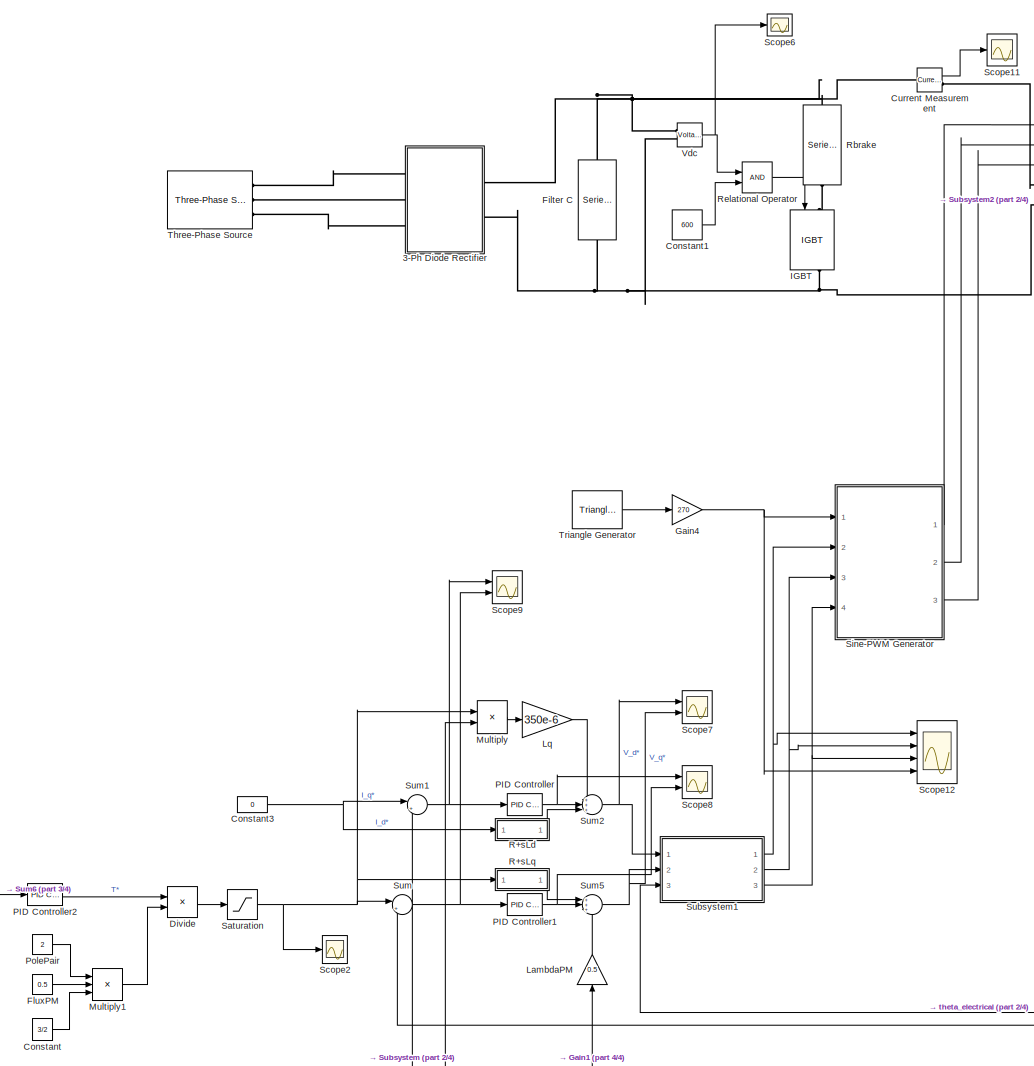
[diagram: root canvas - part 1/4, center side, full height]
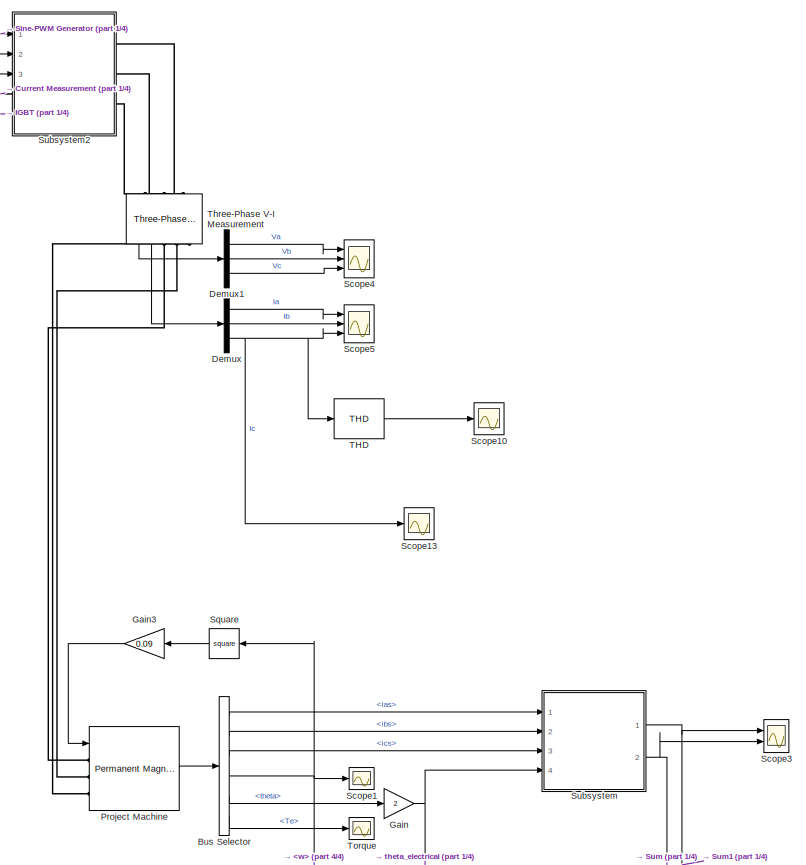
[diagram: root canvas - part 2/4, middle right region]
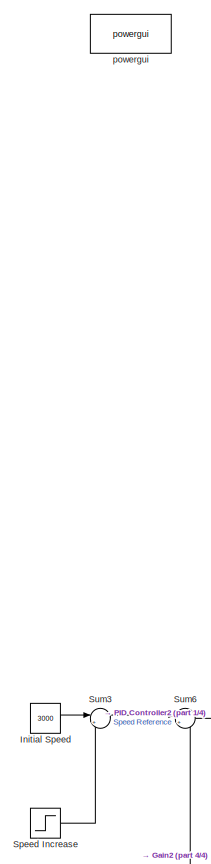
[diagram: root canvas - part 3/4, middle left region]
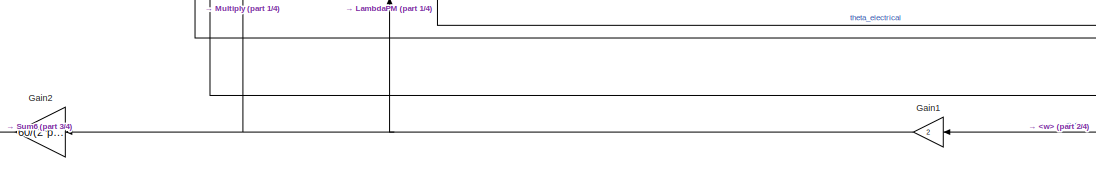
[diagram: root canvas - part 4/4, bottom center region]
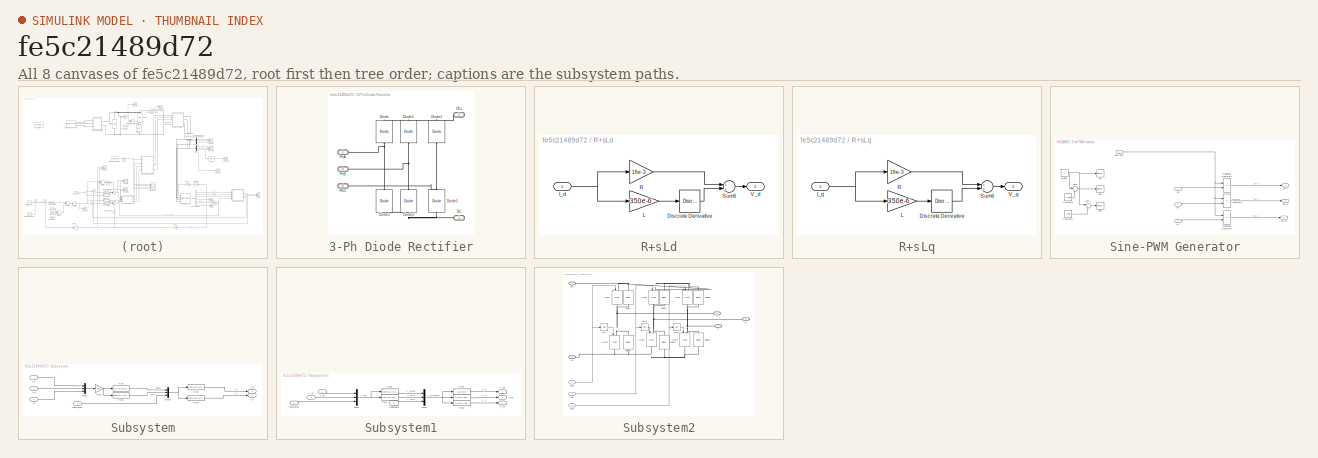
[diagram: thumbnail index - all 8 canvases of the model, root first then tree order]
MODEL slx_fe5c21489d72
KIND model
CONFIG AbsTol = auto
CONFIG EnableMultiTasking = off
CONFIG FixedStep = auto
CONFIG MaxStep = 1e-5
CONFIG MinStep = auto
CONFIG RelTol = 1e-3
CONFIG SampleTimeConstraint = Unconstrained
CONFIG Solver = VariableStepAuto
CONFIG SolverName = VariableStepAuto
CONFIG StartTime = 0.0
CONFIG StopTime = 1
BLOCK [SubSystem] 3-Ph Diode Rectifier
  Ports = [0, 0, 0, 0, 0, 3, 2]
  RequestExecContextInheritance = off
BLOCK [PMIOPort] 3-Ph Diode Rectifier/DC+
  Side = Right
BLOCK [PMIOPort] 3-Ph Diode Rectifier/DC-
  Port = 5
  Side = Right
BLOCK [Reference] 3-Ph Diode Rectifier/Diode  REF=powerlib/Power
Electronics/Diode
  Ports = [0, 0, 0, 0, 0, 1, 1]
  SourceBlock = powerlib/Power\nElectronics/Diode
  SourceProductBaseCode = PS
  SourceProductName = Simscape Power Systems
  SourceType = Diode
BLOCK [Reference] 3-Ph Diode Rectifier/Diode1  REF=powerlib/Power
Electronics/Diode
  Ports = [0, 0, 0, 0, 0, 1, 1]
  SourceBlock = powerlib/Power\nElectronics/Diode
  SourceProductBaseCode = PS
  SourceProductName = Simscape Power Systems
  SourceType = Diode
BLOCK [Reference] 3-Ph Diode Rectifier/Diode2  REF=powerlib/Power
Electronics/Diode
  Ports = [0, 0, 0, 0, 0, 1, 1]
  SourceBlock = powerlib/Power\nElectronics/Diode
  SourceProductBaseCode = PS
  SourceProductName = Simscape Power Systems
  SourceType = Diode
BLOCK [Reference] 3-Ph Diode Rectifier/Diode3  REF=powerlib/Power
Electronics/Diode
  Ports = [0, 0, 0, 0, 0, 1, 1]
  SourceBlock = powerlib/Power\nElectronics/Diode
  SourceProductBaseCode = PS
  SourceProductName = Simscape Power Systems
  SourceType = Diode
BLOCK [Reference] 3-Ph Diode Rectifier/Diode4  REF=powerlib/Power
Electronics/Diode
  Ports = [0, 0, 0, 0, 0, 1, 1]
  SourceBlock = powerlib/Power\nElectronics/Diode
  SourceProductBaseCode = PS
  SourceProductName = Simscape Power Systems
  SourceType = Diode
BLOCK [Reference] 3-Ph Diode Rectifier/Diode5  REF=powerlib/Power
Electronics/Diode
  Ports = [0, 0, 0, 0, 0, 1, 1]
  SourceBlock = powerlib/Power\nElectronics/Diode
  SourceProductBaseCode = PS
  SourceProductName = Simscape Power Systems
  SourceType = Diode
BLOCK [PMIOPort] 3-Ph Diode Rectifier/PhA
  Port = 2
  Side = Left
BLOCK [PMIOPort] 3-Ph Diode Rectifier/PhB
  Port = 3
  Side = Left
BLOCK [PMIOPort] 3-Ph Diode Rectifier/PhC
  Port = 4
  Side = Left
BLOCK [BusSelector] Bus Selector
  OutputAsBus = off
  OutputSignals = ias,ibs,ics,w,theta,Te
  Ports = [1, 6]
BLOCK [Constant] Constant
  Value = 3/2
BLOCK [Constant] Constant1
  Value = 600
BLOCK [Constant] Constant3
  Value = 0
BLOCK [Reference] Current Measurement  REF=powerlib/Measurements/Current Measurement
  Ports = [0, 1, 0, 0, 0, 1, 1]
  SourceBlock = powerlib/Measurements/Current Measurement
  SourceProductBaseCode = PS
  SourceProductName = Simscape Power Systems
  SourceType = Current Measurement
  UserDataPersistent = on
BLOCK [Demux] Demux
  DisplayOption = bar
  Outputs = 3
  Ports = [1, 3]
BLOCK [Demux] Demux1
  DisplayOption = bar
  Outputs = 3
  Ports = [1, 3]
BLOCK [Product] Divide
  InputSameDT = off
  Inputs = */
  OutDataTypeStr = Inherit: Inherit via internal rule
  Ports = [2, 1]
  RndMeth = Floor
  SaturateOnIntegerOverflow = off
BLOCK [Reference] Filter C  REF=powerlib/Elements/Series RLC Branch
  Ports = [0, 0, 0, 0, 0, 1, 1]
  SourceBlock = powerlib/Elements/Series RLC Branch
  SourceProductBaseCode = PS
  SourceProductName = Simscape Power Systems
  SourceType = Series RLC Branch
BLOCK [Constant] FluxPM
  Value = 0.5
BLOCK [Gain] Gain
  Gain = 2
  OutDataTypeStr = Inherit: Inherit via internal rule
  ParamDataTypeStr = Inherit: Inherit via internal rule
  SaturateOnIntegerOverflow = off
BLOCK [Gain] Gain1
  Gain = 2
  OutDataTypeStr = Inherit: Inherit via internal rule
  ParamDataTypeStr = Inherit: Inherit via internal rule
  SaturateOnIntegerOverflow = off
BLOCK [Gain] Gain2
  Gain = 60/(2*pi)
  OutDataTypeStr = Inherit: Inherit via internal rule
  ParamDataTypeStr = Inherit: Inherit via internal rule
  SaturateOnIntegerOverflow = off
BLOCK [Gain] Gain3
  Gain = 0.09
  OutDataTypeStr = Inherit: Inherit via internal rule
  ParamDataTypeStr = Inherit: Inherit via internal rule
  SaturateOnIntegerOverflow = off
BLOCK [Gain] Gain4
  Gain = 270
  OutDataTypeStr = Inherit: Inherit via internal rule
  ParamDataTypeStr = Inherit: Inherit via internal rule
  SaturateOnIntegerOverflow = off
BLOCK [Reference] IGBT  REF=powerlib/Power
Electronics/IGBT
  Ports = [1, 1, 0, 0, 0, 1, 1]
  SourceBlock = powerlib/Power\nElectronics/IGBT
  SourceProductBaseCode = PS
  SourceProductName = Simscape Power Systems
  SourceType = IGBT
BLOCK [Constant] Initial Speed 
  Value = 3000
BLOCK [Gain] LambdaPM
  Gain = 0.5
  OutDataTypeStr = Inherit: Inherit via internal rule
  ParamDataTypeStr = Inherit: Inherit via internal rule
  SaturateOnIntegerOverflow = off
BLOCK [Gain] Lq
  Gain = 350e-6
  OutDataTypeStr = Inherit: Inherit via internal rule
  ParamDataTypeStr = Inherit: Inherit via internal rule
  SaturateOnIntegerOverflow = off
BLOCK [Product] Multiply
  InputSameDT = off
  OutDataTypeStr = Inherit: Inherit via internal rule
  Ports = [2, 1]
  RndMeth = Floor
  SaturateOnIntegerOverflow = off
BLOCK [Product] Multiply1
  InputSameDT = off
  Inputs = 3
  OutDataTypeStr = Inherit: Inherit via internal rule
  Ports = [3, 1]
  RndMeth = Floor
  SaturateOnIntegerOverflow = off
BLOCK [Reference] PID Controller  REF=simulink/Continuous/PID Controller
  Ports = [1, 1]
  SourceBlock = simulink/Continuous/PID Controller
  SourceProductBaseCode = SL
  SourceProductName = Simulink
  SourceType = PID 1dof
BLOCK [Reference] PID Controller1  REF=simulink/Continuous/PID Controller
  Ports = [1, 1]
  SourceBlock = simulink/Continuous/PID Controller
  SourceProductBaseCode = SL
  SourceProductName = Simulink
  SourceType = PID 1dof
BLOCK [Reference] PID Controller2  REF=simulink/Continuous/PID Controller
  Ports = [1, 1]
  SourceBlock = simulink/Continuous/PID Controller
  SourceProductBaseCode = SL
  SourceProductName = Simulink
  SourceType = PID 1dof
BLOCK [Constant] PolePair
  Value = 2
BLOCK [Reference] Project Machine  REF=powerlib/Machines/Permanent Magnet
Synchronous Machine
  Ports = [1, 1, 0, 0, 0, 3]
  SourceBlock = powerlib/Machines/Permanent Magnet\nSynchronous Machine
  SourceProductBaseCode = PS
  SourceProductName = Simscape Power Systems
  SourceType = Permanent Magnet Synchronous Machine
BLOCK [SubSystem] R+sLd
  Ports = [1, 1]
  RequestExecContextInheritance = off
BLOCK [Reference] R+sLd/Discrete Derivative  REF=simulink/Discrete/Discrete Derivative
  Ports = [1, 1]
  SourceBlock = simulink/Discrete/Discrete Derivative
  SourceProductBaseCode = SL
  SourceProductName = Simulink
  SourceType = Discrete Derivative
BLOCK [Inport] R+sLd/I_d
  IconDisplay = Port number
BLOCK [Gain] R+sLd/L
  Gain = 350e-6
  OutDataTypeStr = Inherit: Inherit via internal rule
  ParamDataTypeStr = Inherit: Inherit via internal rule
  SaturateOnIntegerOverflow = off
BLOCK [Gain] R+sLd/R
  Gain = 16e-3
  OutDataTypeStr = Inherit: Inherit via internal rule
  ParamDataTypeStr = Inherit: Inherit via internal rule
  SaturateOnIntegerOverflow = off
BLOCK [Sum] R+sLd/Sum6
  InputSameDT = off
  OutDataTypeStr = Inherit: Inherit via internal rule
  Ports = [2, 1]
  SaturateOnIntegerOverflow = off
BLOCK [Outport] R+sLd/V_d
  IconDisplay = Port number
BLOCK [SubSystem] R+sLq
  Ports = [1, 1]
  RequestExecContextInheritance = off
BLOCK [Reference] R+sLq/Discrete Derivative  REF=simulink/Discrete/Discrete Derivative
  Ports = [1, 1]
  SourceBlock = simulink/Discrete/Discrete Derivative
  SourceProductBaseCode = SL
  SourceProductName = Simulink
  SourceType = Discrete Derivative
BLOCK [Inport] R+sLq/I_q
  IconDisplay = Port number
BLOCK [Gain] R+sLq/L
  Gain = 350e-6
  OutDataTypeStr = Inherit: Inherit via internal rule
  ParamDataTypeStr = Inherit: Inherit via internal rule
  SaturateOnIntegerOverflow = off
BLOCK [Gain] R+sLq/R
  Gain = 16e-3
  OutDataTypeStr = Inherit: Inherit via internal rule
  ParamDataTypeStr = Inherit: Inherit via internal rule
  SaturateOnIntegerOverflow = off
BLOCK [Sum] R+sLq/Sum6
  InputSameDT = off
  OutDataTypeStr = Inherit: Inherit via internal rule
  Ports = [2, 1]
  SaturateOnIntegerOverflow = off
BLOCK [Outport] R+sLq/V_q
  IconDisplay = Port number
BLOCK [Reference] Rbrake  REF=powerlib/Elements/Series RLC Branch
  Ports = [0, 0, 0, 0, 0, 1, 1]
  SourceBlock = powerlib/Elements/Series RLC Branch
  SourceProductBaseCode = PS
  SourceProductName = Simscape Power Systems
  SourceType = Series RLC Branch
BLOCK [RelationalOperator] Relational Operator
  InputSameDT = off
  OutDataTypeStr = boolean
  Ports = [2, 1]
  RndMeth = Simplest
BLOCK [Saturate] Saturation
  InputPortMap = u0
  LowerLimit = -1700
  Ports = [1, 1]
  UpperLimit = 1700
BLOCK [Scope] Scope1
  Floating = off
  NumInputPorts = 1
  Ports = [1]
  ScopeSpecificationString = Simulink.scopes.TimeScopeBlockCfg('CurrentConfiguration', extmgr.ConfigurationSet(extmgr.Configuration('Core','General UI',true,'FigureColor',[1 1 1]),extmgr.Configuration('Core','Source UI',true),extmgr.Configuration('Sources','WiredSimulink',true),extmgr.Configuration('Visuals','Time Domain',true,'SerializedDisplays',{struct('MinYLimReal','139.30985','MaxYLimReal','158.98353','YLabelReal','','Mi...<+1538ch>
BLOCK [Scope] Scope10
  Floating = off
  NumInputPorts = 1
  Ports = [1]
  ScopeSpecificationString = Simulink.scopes.TimeScopeBlockCfg('CurrentConfiguration', extmgr.ConfigurationSet(extmgr.Configuration('Core','General UI',true),extmgr.Configuration('Core','Source UI',true),extmgr.Configuration('Sources','WiredSimulink',true,'DataLoggingVariableName','ScopeData1'),extmgr.Configuration('Visuals','Time Domain',true,'SerializedDisplays',{struct('MinYLimReal','0.01214','MaxYLimReal','0.01889','YLabe...<+1433ch>
BLOCK [Scope] Scope11
  Floating = off
  NumInputPorts = 1
  Ports = [1]
  ScopeSpecificationString = Simulink.scopes.TimeScopeBlockCfg('CurrentConfiguration', extmgr.ConfigurationSet(extmgr.Configuration('Core','General UI',true),extmgr.Configuration('Core','Source UI',true),extmgr.Configuration('Sources','WiredSimulink',true,'DataLoggingVariableName','ScopeData2'),extmgr.Configuration('Visuals','Time Domain',true,'SerializedDisplays',{struct('MinYLimReal','-3413.35297','MaxYLimReal','3220.085','...<+1421ch>
BLOCK [Scope] Scope12
  Floating = off
  NumInputPorts = 4
  Ports = [4]
  ScopeSpecificationString = Simulink.scopes.TimeScopeBlockCfg('CurrentConfiguration', extmgr.ConfigurationSet(extmgr.Configuration('Core','General UI',true,'FigureColor',[1 1 1]),extmgr.Configuration('Core','Source UI',true),extmgr.Configuration('Sources','WiredSimulink',true,'DataLoggingVariableName','ScopeData1'),extmgr.Configuration('Visuals','Time Domain',true,'SerializedDisplays',{struct('MinYLimReal','-613.50667','MaxY...<+1977ch>
BLOCK [Scope] Scope13
  Floating = off
  NumInputPorts = 1
  Ports = [1]
  ScopeSpecificationString = Simulink.scopes.TimeScopeBlockCfg('CurrentConfiguration', extmgr.ConfigurationSet(extmgr.Configuration('Core','General UI',true),extmgr.Configuration('Core','Source UI',true),extmgr.Configuration('Sources','WiredSimulink',true,'DataLoggingVariableName','ic_sine','DataLogging',true),extmgr.Configuration('Visuals','Time Domain',true,'SerializedDisplays',{struct('MinYLimReal','-1881.68041','MaxYLimRe...<+1453ch>
BLOCK [Scope] Scope2
  Floating = off
  NumInputPorts = 1
  Ports = [1]
  ScopeSpecificationString = Simulink.scopes.TimeScopeBlockCfg('CurrentConfiguration', extmgr.ConfigurationSet(extmgr.Configuration('Core','General UI',true,'FigureColor',[1 1 1]),extmgr.Configuration('Core','Source UI',true),extmgr.Configuration('Sources','WiredSimulink',true,'DataLoggingVariableName','ScopeData1'),extmgr.Configuration('Visuals','Time Domain',true,'SerializedDisplays',{struct('MinYLimReal','1130.17465','MaxY...<+1586ch>
BLOCK [Scope] Scope3
  Floating = off
  NumInputPorts = 2
  Ports = [2]
  ScopeSpecificationString = Simulink.scopes.TimeScopeBlockCfg('CurrentConfiguration', extmgr.ConfigurationSet(extmgr.Configuration('Core','General UI',true,'FigureColor',[1 1 1]),extmgr.Configuration('Core','Source UI',true),extmgr.Configuration('Sources','WiredSimulink',true,'DataLoggingVariableName','ScopeData5'),extmgr.Configuration('Visuals','Time Domain',true,'SerializedDisplays',{struct('MinYLimReal','-494.52472','MaxY...<+1716ch>
BLOCK [Scope] Scope4
  Floating = off
  NumInputPorts = 3
  Ports = [3]
  ScopeSpecificationString = Simulink.scopes.TimeScopeBlockCfg('CurrentConfiguration', extmgr.ConfigurationSet(extmgr.Configuration('Core','General UI',true,'FigureColor',[1 1 1]),extmgr.Configuration('Core','Source UI',true),extmgr.Configuration('Sources','WiredSimulink',true,'DataLoggingVariableName','ScopeData3'),extmgr.Configuration('Visuals','Time Domain',true,'SerializedDisplays',{struct('MinYLimReal','-848.24449','MaxY...<+3257ch>
BLOCK [Scope] Scope5
  Floating = off
  NumInputPorts = 3
  Ports = [3]
  ScopeSpecificationString = Simulink.scopes.TimeScopeBlockCfg('CurrentConfiguration', extmgr.ConfigurationSet(extmgr.Configuration('Core','General UI',true,'FigureColor',[1 1 1]),extmgr.Configuration('Core','Source UI',true),extmgr.Configuration('Sources','WiredSimulink',true,'DataLoggingVariableName','ScopeData4'),extmgr.Configuration('Visuals','Time Domain',true,'SerializedDisplays',{struct('MinYLimReal','-2256.70546','Max...<+3290ch>
BLOCK [Scope] Scope6
  Floating = off
  NumInputPorts = 1
  Ports = [1]
  ScopeSpecificationString = Simulink.scopes.TimeScopeBlockCfg('CurrentConfiguration', extmgr.ConfigurationSet(extmgr.Configuration('Core','General UI',true,'FigureColor',[1 1 1]),extmgr.Configuration('Core','Source UI',true),extmgr.Configuration('Sources','WiredSimulink',true,'DataLoggingVariableName','ScopeData6'),extmgr.Configuration('Visuals','Time Domain',true,'SerializedDisplays',{struct('MinYLimReal','473.77089','MaxYL...<+1569ch>
BLOCK [Scope] Scope7
  Floating = off
  NumInputPorts = 2
  Ports = [2]
  ScopeSpecificationString = Simulink.scopes.TimeScopeBlockCfg('CurrentConfiguration', extmgr.ConfigurationSet(extmgr.Configuration('Core','General UI',true),extmgr.Configuration('Core','Source UI',true),extmgr.Configuration('Sources','WiredSimulink',true,'DataLoggingVariableName','ScopeData8'),extmgr.Configuration('Visuals','Time Domain',true,'SerializedDisplays',{struct('MinYLimReal','-131.88438','MaxYLimReal','-91.43474','...<+2073ch>
BLOCK [Scope] Scope8
  Floating = off
  NumInputPorts = 2
  Ports = [2]
  ScopeSpecificationString = Simulink.scopes.TimeScopeBlockCfg('CurrentConfiguration', extmgr.ConfigurationSet(extmgr.Configuration('Core','General UI',true),extmgr.Configuration('Core','Source UI',true),extmgr.Configuration('Sources','WiredSimulink',true,'DataLoggingVariableName','ScopeData1'),extmgr.Configuration('Visuals','Time Domain',true,'SerializedDisplays',{struct('MinYLimReal','-390.3806','MaxYLimReal','43.3834','YLa...<+2106ch>
BLOCK [Scope] Scope9
  Floating = off
  NumInputPorts = 2
  Ports = [2]
  ScopeSpecificationString = Simulink.scopes.TimeScopeBlockCfg('CurrentConfiguration', extmgr.ConfigurationSet(extmgr.Configuration('Core','General UI',true),extmgr.Configuration('Core','Source UI',true),extmgr.Configuration('Sources','WiredSimulink',true,'DataLoggingVariableName','ScopeData2'),extmgr.Configuration('Visuals','Time Domain',true,'SerializedDisplays',{struct('MinYLimReal','-1687.79093','MaxYLimReal','747.29528',...<+2085ch>
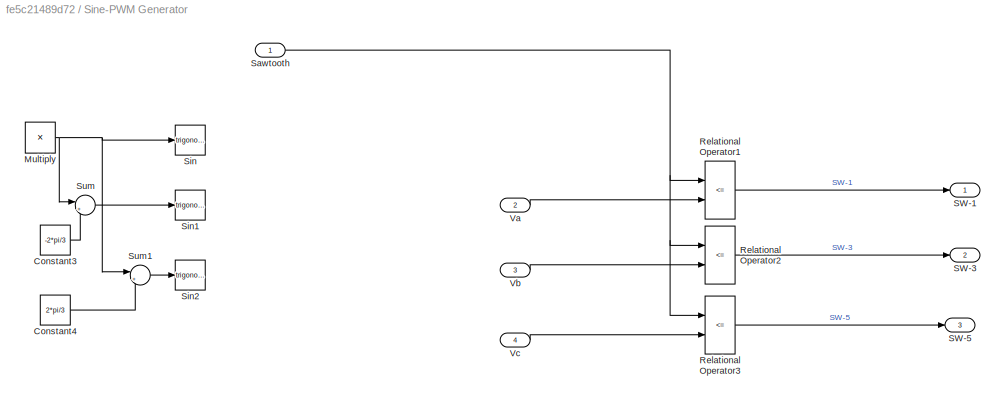
BLOCK [SubSystem] Sine-PWM Generator
  Ports = [4, 3]
  RequestExecContextInheritance = off
BLOCK [Constant] Sine-PWM Generator/Constant3
  Commented = on
  Value = -2*pi/3
BLOCK [Constant] Sine-PWM Generator/Constant4
  Commented = on
  Value = 2*pi/3
BLOCK [Product] Sine-PWM Generator/Multiply
  Commented = on
  InputSameDT = off
  OutDataTypeStr = Inherit: Inherit via internal rule
  Ports = [2, 1]
  RndMeth = Floor
  SaturateOnIntegerOverflow = off
BLOCK [RelationalOperator] Sine-PWM Generator/Relational Operator1
  InputSameDT = off
  Operator = <=
  OutDataTypeStr = boolean
  Ports = [2, 1]
  RndMeth = Simplest
BLOCK [RelationalOperator] Sine-PWM Generator/Relational Operator2
  InputSameDT = off
  Operator = <=
  OutDataTypeStr = boolean
  Ports = [2, 1]
  RndMeth = Simplest
BLOCK [RelationalOperator] Sine-PWM Generator/Relational Operator3
  InputSameDT = off
  Operator = <=
  OutDataTypeStr = boolean
  Ports = [2, 1]
  RndMeth = Simplest
BLOCK [Outport] Sine-PWM Generator/SW-1
  IconDisplay = Port number
BLOCK [Outport] Sine-PWM Generator/SW-3
  IconDisplay = Port number
  Port = 2
BLOCK [Outport] Sine-PWM Generator/SW-5
  IconDisplay = Port number
  Port = 3
BLOCK [Inport] Sine-PWM Generator/Sawtooth 
  IconDisplay = Port number
BLOCK [Trigonometry] Sine-PWM Generator/Sin
  Commented = on
  Ports = [1, 1]
BLOCK [Trigonometry] Sine-PWM Generator/Sin1
  Commented = on
  Ports = [1, 1]
BLOCK [Trigonometry] Sine-PWM Generator/Sin2
  Commented = on
  Ports = [1, 1]
BLOCK [Sum] Sine-PWM Generator/Sum
  Commented = on
  IconShape = round
  InputSameDT = off
  Inputs = |++
  OutDataTypeStr = Inherit: Inherit via internal rule
  Ports = [2, 1]
  SaturateOnIntegerOverflow = off
BLOCK [Sum] Sine-PWM Generator/Sum1
  Commented = on
  IconShape = round
  InputSameDT = off
  Inputs = |++
  OutDataTypeStr = Inherit: Inherit via internal rule
  Ports = [2, 1]
  SaturateOnIntegerOverflow = off
BLOCK [Inport] Sine-PWM Generator/Va
  IconDisplay = Port number
  Port = 2
BLOCK [Inport] Sine-PWM Generator/Vb
  IconDisplay = Port number
  Port = 3
BLOCK [Inport] Sine-PWM Generator/Vc
  IconDisplay = Port number
  Port = 4
BLOCK [Step] Speed Increase
  After = 300
  SampleTime = 0
BLOCK [Math] Square
  Operator = square
  Ports = [1, 1]
BLOCK [SubSystem] Subsystem
  Ports = [4, 2]
  RequestExecContextInheritance = off
BLOCK [Fcn] Subsystem/Fcn
  Expr = u(1)-0.5*u(2)-0.5*u(3)
BLOCK [Fcn] Subsystem/Fcn1
  Expr = sqrt(3)*(u(2)-u(3))/2
BLOCK [Fcn] Subsystem/Fcn2
  Expr = cos(u(3))*u(1)+sin(u(3))*u(2)
BLOCK [Fcn] Subsystem/Fcn3
  Expr = cos(u(3))*u(2)-sin(u(3))*u(1)
BLOCK [Gain] Subsystem/Gain
  Gain = 2/3
  OutDataTypeStr = Inherit: Inherit via internal rule
  ParamDataTypeStr = Inherit: Inherit via internal rule
  SaturateOnIntegerOverflow = off
BLOCK [Inport] Subsystem/I_a
  IconDisplay = Port number
BLOCK [Inport] Subsystem/I_b
  IconDisplay = Port number
  Port = 2
BLOCK [Inport] Subsystem/I_c
  IconDisplay = Port number
  Port = 3
BLOCK [Outport] Subsystem/I_d
  IconDisplay = Port number
BLOCK [Outport] Subsystem/I_q
  IconDisplay = Port number
  Port = 2
BLOCK [Mux] Subsystem/Mux1
  DisplayOption = bar
  Inputs = 3
  Ports = [3, 1]
BLOCK [Mux] Subsystem/Mux2
  DisplayOption = bar
  Inputs = 3
  Ports = [3, 1]
BLOCK [Inport] Subsystem/theta_elec
  IconDisplay = Port number
  Port = 4
BLOCK [SubSystem] Subsystem1
  Ports = [3, 3]
  RequestExecContextInheritance = off
BLOCK [Constant] Subsystem1/Constant3
  Value = 0
BLOCK [Fcn] Subsystem1/Fcn1
  Expr = u(1)+u(3)
BLOCK [Fcn] Subsystem1/Fcn2
  Expr = cos(u(3))*u(1)-sin(u(3))*u(2)
BLOCK [Fcn] Subsystem1/Fcn3
  Expr = cos(u(3))*u(2)+sin(u(3))*u(1)
BLOCK [Fcn] Subsystem1/Fcn4
  Expr = -0.5*u(1)+sqrt(3)*u(2)/2+u(3)
BLOCK [Fcn] Subsystem1/Fcn5
  Expr = -0.5*u(1)-sqrt(3)*u(2)/2+u(3)
BLOCK [Mux] Subsystem1/Mux1
  DisplayOption = bar
  Inputs = 3
  Ports = [3, 1]
BLOCK [Mux] Subsystem1/Mux2
  DisplayOption = bar
  Inputs = 3
  Ports = [3, 1]
BLOCK [Outport] Subsystem1/V_a*
  IconDisplay = Port number
BLOCK [Outport] Subsystem1/V_b*
  IconDisplay = Port number
  Port = 2
BLOCK [Outport] Subsystem1/V_c*
  IconDisplay = Port number
  Port = 3
BLOCK [Inport] Subsystem1/V_d*
  IconDisplay = Port number
BLOCK [Inport] Subsystem1/V_q*
  IconDisplay = Port number
  Port = 2
BLOCK [Inport] Subsystem1/theta_elec
  IconDisplay = Port number
  Port = 3
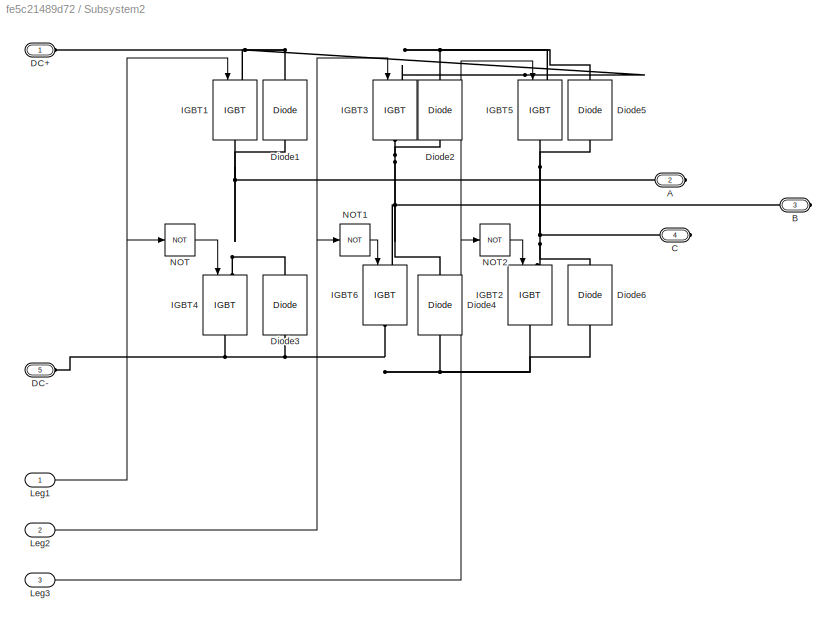
BLOCK [SubSystem] Subsystem2
  Ports = [3, 0, 0, 0, 0, 2, 3]
  RequestExecContextInheritance = off
BLOCK [PMIOPort] Subsystem2/A
  Port = 2
  Side = Right
BLOCK [PMIOPort] Subsystem2/B
  Port = 3
  Side = Right
BLOCK [PMIOPort] Subsystem2/C
  Port = 4
  Side = Right
BLOCK [PMIOPort] Subsystem2/DC+
  Side = Left
BLOCK [PMIOPort] Subsystem2/DC-
  Port = 5
  Side = Left
BLOCK [Reference] Subsystem2/Diode1  REF=powerlib/Power
Electronics/Diode
  Ports = [0, 0, 0, 0, 0, 1, 1]
  SourceBlock = powerlib/Power\nElectronics/Diode
  SourceProductBaseCode = PS
  SourceProductName = Simscape Power Systems
  SourceType = Diode
BLOCK [Reference] Subsystem2/Diode2  REF=powerlib/Power
Electronics/Diode
  Ports = [0, 0, 0, 0, 0, 1, 1]
  SourceBlock = powerlib/Power\nElectronics/Diode
  SourceProductBaseCode = PS
  SourceProductName = Simscape Power Systems
  SourceType = Diode
BLOCK [Reference] Subsystem2/Diode3  REF=powerlib/Power
Electronics/Diode
  Ports = [0, 0, 0, 0, 0, 1, 1]
  SourceBlock = powerlib/Power\nElectronics/Diode
  SourceProductBaseCode = PS
  SourceProductName = Simscape Power Systems
  SourceType = Diode
BLOCK [Reference] Subsystem2/Diode4  REF=powerlib/Power
Electronics/Diode
  Ports = [0, 0, 0, 0, 0, 1, 1]
  SourceBlock = powerlib/Power\nElectronics/Diode
  SourceProductBaseCode = PS
  SourceProductName = Simscape Power Systems
  SourceType = Diode
BLOCK [Reference] Subsystem2/Diode5  REF=powerlib/Power
Electronics/Diode
  Ports = [0, 0, 0, 0, 0, 1, 1]
  SourceBlock = powerlib/Power\nElectronics/Diode
  SourceProductBaseCode = PS
  SourceProductName = Simscape Power Systems
  SourceType = Diode
BLOCK [Reference] Subsystem2/Diode6  REF=powerlib/Power
Electronics/Diode
  Ports = [0, 0, 0, 0, 0, 1, 1]
  SourceBlock = powerlib/Power\nElectronics/Diode
  SourceProductBaseCode = PS
  SourceProductName = Simscape Power Systems
  SourceType = Diode
BLOCK [Reference] Subsystem2/IGBT1  REF=powerlib/Power
Electronics/IGBT
  Ports = [1, 0, 0, 0, 0, 1, 1]
  SourceBlock = powerlib/Power\nElectronics/IGBT
  SourceProductBaseCode = PS
  SourceProductName = Simscape Power Systems
  SourceType = IGBT
BLOCK [Reference] Subsystem2/IGBT2  REF=powerlib/Power
Electronics/IGBT
  Ports = [1, 0, 0, 0, 0, 1, 1]
  SourceBlock = powerlib/Power\nElectronics/IGBT
  SourceProductBaseCode = PS
  SourceProductName = Simscape Power Systems
  SourceType = IGBT
BLOCK [Reference] Subsystem2/IGBT3  REF=powerlib/Power
Electronics/IGBT
  Ports = [1, 0, 0, 0, 0, 1, 1]
  SourceBlock = powerlib/Power\nElectronics/IGBT
  SourceProductBaseCode = PS
  SourceProductName = Simscape Power Systems
  SourceType = IGBT
BLOCK [Reference] Subsystem2/IGBT4  REF=powerlib/Power
Electronics/IGBT
  Ports = [1, 0, 0, 0, 0, 1, 1]
  SourceBlock = powerlib/Power\nElectronics/IGBT
  SourceProductBaseCode = PS
  SourceProductName = Simscape Power Systems
  SourceType = IGBT
BLOCK [Reference] Subsystem2/IGBT5  REF=powerlib/Power
Electronics/IGBT
  Ports = [1, 0, 0, 0, 0, 1, 1]
  SourceBlock = powerlib/Power\nElectronics/IGBT
  SourceProductBaseCode = PS
  SourceProductName = Simscape Power Systems
  SourceType = IGBT
BLOCK [Reference] Subsystem2/IGBT6  REF=powerlib/Power
Electronics/IGBT
  Ports = [1, 0, 0, 0, 0, 1, 1]
  SourceBlock = powerlib/Power\nElectronics/IGBT
  SourceProductBaseCode = PS
  SourceProductName = Simscape Power Systems
  SourceType = IGBT
BLOCK [Inport] Subsystem2/Leg1
  IconDisplay = Port number
BLOCK [Inport] Subsystem2/Leg2
  IconDisplay = Port number
  Port = 2
BLOCK [Inport] Subsystem2/Leg3
  IconDisplay = Port number
  Port = 3
BLOCK [Logic] Subsystem2/NOT
  AllPortsSameDT = off
  IconShape = distinctive
  Operator = NOT
  OutDataTypeStr = boolean
  Ports = [1, 1]
BLOCK [Logic] Subsystem2/NOT1
  AllPortsSameDT = off
  IconShape = distinctive
  Operator = NOT
  OutDataTypeStr = boolean
  Ports = [1, 1]
BLOCK [Logic] Subsystem2/NOT2
  AllPortsSameDT = off
  IconShape = distinctive
  Operator = NOT
  OutDataTypeStr = boolean
  Ports = [1, 1]
BLOCK [Sum] Sum
  IconShape = round
  InputSameDT = off
  Inputs = |+-
  OutDataTypeStr = Inherit: Inherit via internal rule
  Ports = [2, 1]
  SaturateOnIntegerOverflow = off
BLOCK [Sum] Sum1
  IconShape = round
  InputSameDT = off
  Inputs = |+-
  OutDataTypeStr = Inherit: Inherit via internal rule
  Ports = [2, 1]
  SaturateOnIntegerOverflow = off
BLOCK [Sum] Sum2
  IconShape = round
  InputSameDT = off
  Inputs = +++
  OutDataTypeStr = Inherit: Inherit via internal rule
  Ports = [3, 1]
  SaturateOnIntegerOverflow = off
BLOCK [Sum] Sum3
  IconShape = round
  InputSameDT = off
  Inputs = |++
  OutDataTypeStr = Inherit: Inherit via internal rule
  Ports = [2, 1]
  SaturateOnIntegerOverflow = off
BLOCK [Sum] Sum5
  IconShape = round
  InputSameDT = off
  Inputs = +++
  OutDataTypeStr = Inherit: Inherit via internal rule
  Ports = [3, 1]
  SaturateOnIntegerOverflow = off
BLOCK [Sum] Sum6
  IconShape = round
  InputSameDT = off
  Inputs = |+-
  OutDataTypeStr = Inherit: Inherit via internal rule
  Ports = [2, 1]
  SaturateOnIntegerOverflow = off
BLOCK [Reference] THD  REF=powerlib_meascontrol/Measurements/THD
  Ports = [1, 1]
  SourceBlock = powerlib_meascontrol/Measurements/THD
  SourceProductBaseCode = PS
  SourceProductName = Simscape Power Systems
  SourceType = THD
BLOCK [Reference] Three-Phase Source  REF=powerlib/Electrical
Sources/Three-Phase Source
  Ports = [0, 0, 0, 0, 0, 0, 3]
  SourceBlock = powerlib/Electrical\nSources/Three-Phase Source
  SourceProductBaseCode = PS
  SourceProductName = Simscape Power Systems
  SourceType = Three-Phase Source
BLOCK [Reference] Three-Phase V-I Measurement  REF=powerlib/Measurements/Three-Phase
V-I Measurement
  Ports = [0, 2, 0, 0, 0, 3, 3]
  SourceBlock = powerlib/Measurements/Three-Phase\nV-I Measurement
  SourceProductBaseCode = PS
  SourceProductName = Simscape Power Systems
  SourceType = Three-Phase VI Measurement
BLOCK [Scope] Torque
  Floating = off
  NumInputPorts = 1
  Ports = [1]
  ScopeSpecificationString = Simulink.scopes.TimeScopeBlockCfg('CurrentConfiguration', extmgr.ConfigurationSet(extmgr.Configuration('Core','General UI',true,'FigureColor',[1 1 1]),extmgr.Configuration('Core','Source UI',true),extmgr.Configuration('Sources','WiredSimulink',true,'DataLoggingVariableName','ScopeData2'),extmgr.Configuration('Visuals','Time Domain',true,'SerializedDisplays',{struct('MinYLimReal','-404.0975','MaxYL...<+1580ch>
BLOCK [Reference] Triangle Generator  REF=powerlib_meascontrol/Pulse & Signal
Generators/Triangle
Generator
  Ports = [0, 1]
  SourceBlock = powerlib_meascontrol/Pulse & Signal\nGenerators/Triangle\nGenerator
  SourceProductBaseCode = PS
  SourceProductName = Simscape Power Systems
  SourceType = Triangle Generator
BLOCK [Reference] Vdc  REF=powerlib/Measurements/Voltage Measurement
  Ports = [0, 1, 0, 0, 0, 2]
  SourceBlock = powerlib/Measurements/Voltage Measurement
  SourceProductBaseCode = PS
  SourceProductName = Simscape Power Systems
  SourceType = Voltage Measurement
  UserDataPersistent = on
BLOCK [Reference] powergui  REF=powerlib/powergui
  Ports = []
  Priority = 1
  SourceBlock = powerlib/powergui
  SourceProductBaseCode = PS
  SourceProductName = Simscape Power Systems
  SourceType = PSB option menu block
LINE Bus Selector:1 -> Subsystem:1
LINE Bus Selector:2 -> Subsystem:2
LINE Bus Selector:3 -> Subsystem:3
NET Bus Selector:4 -> Gain1:1, Scope1:1, Square:1
LINE Bus Selector:5 -> Gain:1
LINE Bus Selector:6 -> Torque:1
LINE Constant1:1 -> Relational Operator:2
NET Constant3:1 -> R+sLd:1, Sum1:1
LINE Constant:1 -> Multiply1:3
LINE Current Measurement:1 -> Scope11:1
LINE Demux1:1 -> Scope4:1
LINE Demux1:2 -> Scope4:2
LINE Demux1:3 -> Scope4:3
LINE Demux:1 -> Scope5:1
LINE Demux:2 -> Scope5:2
NET Demux:3 -> Scope13:1, Scope5:3, THD:1
LINE Divide:1 -> Saturation:1
LINE FluxPM:1 -> Multiply1:2
NET Gain1:1 -> Gain2:1, LambdaPM:1, Multiply:2
LINE Gain2:1 -> Sum6:2
LINE Gain3:1 -> Project Machine:1
NET Gain4:1 -> Scope12:4, Sine-PWM Generator:1
NET Gain:1 -> Subsystem1:3, Subsystem:4
LINE Initial Speed :1 -> Sum3:1
LINE LambdaPM:1 -> Sum5:3
LINE Lq:1 -> Sum2:1
LINE Multiply1:1 -> Divide:2
LINE Multiply:1 -> Lq:1
NET PID Controller1:1 -> Scope8:2, Sum5:2
LINE PID Controller2:1 -> Divide:1
NET PID Controller:1 -> Scope8:1, Sum2:2
LINE PolePair:1 -> Multiply1:1
LINE Project Machine:1 -> Bus Selector:1
LINE R+sLd/Discrete Derivative:1 -> R+sLd/Sum6:2
NET R+sLd/I_d:1 -> R+sLd/L:1, R+sLd/R:1
LINE R+sLd/L:1 -> R+sLd/Discrete Derivative:1
LINE R+sLd/R:1 -> R+sLd/Sum6:1
LINE R+sLd/Sum6:1 -> R+sLd/V_d:1
LINE R+sLd:1 -> Sum2:3
LINE R+sLq/Discrete Derivative:1 -> R+sLq/Sum6:2
NET R+sLq/I_q:1 -> R+sLq/L:1, R+sLq/R:1
LINE R+sLq/L:1 -> R+sLq/Discrete Derivative:1
LINE R+sLq/R:1 -> R+sLq/Sum6:1
LINE R+sLq/Sum6:1 -> R+sLq/V_q:1
LINE R+sLq:1 -> Sum5:1
LINE Relational Operator:1 -> IGBT:1
NET Saturation:1 -> Multiply:1, R+sLq:1, Scope2:1, Sum:1
LINE Sine-PWM Generator/Constant3:1 -> Sine-PWM Generator/Sum:2
LINE Sine-PWM Generator/Constant4:1 -> Sine-PWM Generator/Sum1:2
NET Sine-PWM Generator/Multiply:1 -> Sine-PWM Generator/Sin:1, Sine-PWM Generator/Sum1:1, Sine-PWM Generator/Sum:1
LINE Sine-PWM Generator/Relational Operator1:1 -> Sine-PWM Generator/SW-1:1
LINE Sine-PWM Generator/Relational Operator2:1 -> Sine-PWM Generator/SW-3:1
LINE Sine-PWM Generator/Relational Operator3:1 -> Sine-PWM Generator/SW-5:1
NET Sine-PWM Generator/Sawtooth :1 -> Sine-PWM Generator/Relational Operator1:1, Sine-PWM Generator/Relational Operator2:1, Sine-PWM Generator/Relational Operator3:1
LINE Sine-PWM Generator/Sum1:1 -> Sine-PWM Generator/Sin2:1
LINE Sine-PWM Generator/Sum:1 -> Sine-PWM Generator/Sin1:1
LINE Sine-PWM Generator/Va:1 -> Sine-PWM Generator/Relational Operator1:2
LINE Sine-PWM Generator/Vb:1 -> Sine-PWM Generator/Relational Operator2:2
LINE Sine-PWM Generator/Vc:1 -> Sine-PWM Generator/Relational Operator3:2
LINE Sine-PWM Generator:1 -> Subsystem2:1
LINE Sine-PWM Generator:2 -> Subsystem2:2
LINE Sine-PWM Generator:3 -> Subsystem2:3
LINE Speed Increase:1 -> Sum3:2
LINE Square:1 -> Gain3:1
LINE Subsystem/Fcn1:1 -> Subsystem/Mux2:2
LINE Subsystem/Fcn2:1 -> Subsystem/I_d:1
LINE Subsystem/Fcn3:1 -> Subsystem/I_q:1
LINE Subsystem/Fcn:1 -> Subsystem/Mux2:1
NET Subsystem/Gain:1 -> Subsystem/Fcn1:1, Subsystem/Fcn:1
LINE Subsystem/I_a:1 -> Subsystem/Mux1:1
LINE Subsystem/I_b:1 -> Subsystem/Mux1:2
LINE Subsystem/I_c:1 -> Subsystem/Mux1:3
LINE Subsystem/Mux1:1 -> Subsystem/Gain:1
NET Subsystem/Mux2:1 -> Subsystem/Fcn2:1, Subsystem/Fcn3:1
LINE Subsystem/theta_elec:1 -> Subsystem/Mux2:3
LINE Subsystem1/Constant3:1 -> Subsystem1/Mux1:3
LINE Subsystem1/Fcn1:1 -> Subsystem1/V_a*:1
LINE Subsystem1/Fcn2:1 -> Subsystem1/Mux1:1
LINE Subsystem1/Fcn3:1 -> Subsystem1/Mux1:2
LINE Subsystem1/Fcn4:1 -> Subsystem1/V_b*:1
LINE Subsystem1/Fcn5:1 -> Subsystem1/V_c*:1
NET Subsystem1/Mux1:1 -> Subsystem1/Fcn1:1, Subsystem1/Fcn4:1, Subsystem1/Fcn5:1
NET Subsystem1/Mux2:1 -> Subsystem1/Fcn2:1, Subsystem1/Fcn3:1
LINE Subsystem1/V_d*:1 -> Subsystem1/Mux2:1
LINE Subsystem1/V_q*:1 -> Subsystem1/Mux2:2
LINE Subsystem1/theta_elec:1 -> Subsystem1/Mux2:3
NET Subsystem1:1 -> Scope12:1, Sine-PWM Generator:2
NET Subsystem1:2 -> Scope12:2, Sine-PWM Generator:3
NET Subsystem1:3 -> Scope12:3, Sine-PWM Generator:4
NET Subsystem2/Leg1:1 -> Subsystem2/IGBT1:1, Subsystem2/NOT:1
NET Subsystem2/Leg2:1 -> Subsystem2/IGBT3:1, Subsystem2/NOT1:1
NET Subsystem2/Leg3:1 -> Subsystem2/IGBT5:1, Subsystem2/NOT2:1
LINE Subsystem2/NOT1:1 -> Subsystem2/IGBT6:1
LINE Subsystem2/NOT2:1 -> Subsystem2/IGBT2:1
LINE Subsystem2/NOT:1 -> Subsystem2/IGBT4:1
NET Subsystem:1 -> Scope3:1, Sum1:2
NET Subsystem:2 -> Scope3:2, Sum:2
NET Sum1:1 -> PID Controller:1, Scope9:1
NET Sum2:1 -> Scope7:1, Subsystem1:1
LINE Sum3:1 -> Sum6:1
NET Sum5:1 -> Scope7:2, Subsystem1:2
LINE Sum6:1 -> PID Controller2:1
NET Sum:1 -> PID Controller1:1, Scope9:2
LINE THD:1 -> Scope10:1
LINE Three-Phase V-I Measurement:1 -> Demux1:1
LINE Three-Phase V-I Measurement:2 -> Demux:1
LINE Triangle Generator:1 -> Gain4:1
NET Vdc:1 -> Relational Operator:1, Scope6:1
PNET net1: 3-Ph Diode Rectifier/DC+:RConn1 -- 3-Ph Diode Rectifier/Diode1:RConn1 -- 3-Ph Diode Rectifier/Diode2:RConn1 -- 3-Ph Diode Rectifier/Diode:RConn1
PNET net2: 3-Ph Diode Rectifier/DC-:RConn1 -- 3-Ph Diode Rectifier/Diode3:LConn1 -- 3-Ph Diode Rectifier/Diode4:LConn1 -- 3-Ph Diode Rectifier/Diode5:LConn1
PNET net3: 3-Ph Diode Rectifier/Diode1:LConn1 -- 3-Ph Diode Rectifier/Diode4:RConn1 -- 3-Ph Diode Rectifier/PhB:RConn1
PNET net4: 3-Ph Diode Rectifier/Diode2:LConn1 -- 3-Ph Diode Rectifier/Diode5:RConn1 -- 3-Ph Diode Rectifier/PhC:RConn1
PNET net5: 3-Ph Diode Rectifier/Diode3:RConn1 -- 3-Ph Diode Rectifier/Diode:LConn1 -- 3-Ph Diode Rectifier/PhA:RConn1
PLINE 3-Ph Diode Rectifier:LConn1 -- Three-Phase Source:RConn1
PLINE 3-Ph Diode Rectifier:LConn2 -- Three-Phase Source:RConn2
PLINE 3-Ph Diode Rectifier:LConn3 -- Three-Phase Source:RConn3
PNET net6: 3-Ph Diode Rectifier:RConn1 -- Current Measurement:LConn1 -- Filter C:LConn1 -- Rbrake:LConn1 -- Vdc:LConn1
PNET net7: 3-Ph Diode Rectifier:RConn2 -- Filter C:RConn1 -- IGBT:RConn1 -- Subsystem2:LConn2 -- Vdc:LConn2
PLINE Current Measurement:RConn1 -- Subsystem2:LConn1
PLINE IGBT:LConn1 -- Rbrake:RConn1
PLINE Project Machine:LConn1 -- Three-Phase V-I Measurement:RConn1
PLINE Project Machine:LConn2 -- Three-Phase V-I Measurement:RConn2
PLINE Project Machine:LConn3 -- Three-Phase V-I Measurement:RConn3
PNET net8: Subsystem2/A:RConn1 -- Subsystem2/Diode1:LConn1 -- Subsystem2/Diode3:RConn1 -- Subsystem2/IGBT1:RConn1 -- Subsystem2/IGBT4:LConn1
PNET net9: Subsystem2/B:RConn1 -- Subsystem2/Diode2:LConn1 -- Subsystem2/Diode4:RConn1 -- Subsystem2/IGBT3:RConn1 -- Subsystem2/IGBT6:LConn1
PNET net10: Subsystem2/C:RConn1 -- Subsystem2/Diode5:LConn1 -- Subsystem2/Diode6:RConn1 -- Subsystem2/IGBT2:LConn1 -- Subsystem2/IGBT5:RConn1
PNET net11: Subsystem2/DC+:RConn1 -- Subsystem2/Diode1:RConn1 -- Subsystem2/Diode2:RConn1 -- Subsystem2/Diode5:RConn1 -- Subsystem2/IGBT1:LConn1 -- Subsystem2/IGBT3:LConn1 -- Subsystem2/IGBT5:LConn1
PNET net12: Subsystem2/DC-:RConn1 -- Subsystem2/Diode3:LConn1 -- Subsystem2/Diode4:LConn1 -- Subsystem2/Diode6:LConn1 -- Subsystem2/IGBT2:RConn1 -- Subsystem2/IGBT4:RConn1 -- Subsystem2/IGBT6:RConn1
PLINE Subsystem2:RConn1 -- Three-Phase V-I Measurement:LConn1
PLINE Subsystem2:RConn2 -- Three-Phase V-I Measurement:LConn2
PLINE Subsystem2:RConn3 -- Three-Phase V-I Measurement:LConn3
note: NET lines group one-source signal fan-out (src -> all destinations, sorted); 1:1 wires keep LINE; PNET lines group multi-terminal physical nets as a canonical sorted terminal list (undirected conserving connections); 2-terminal nets keep the pairwise PLINE form
